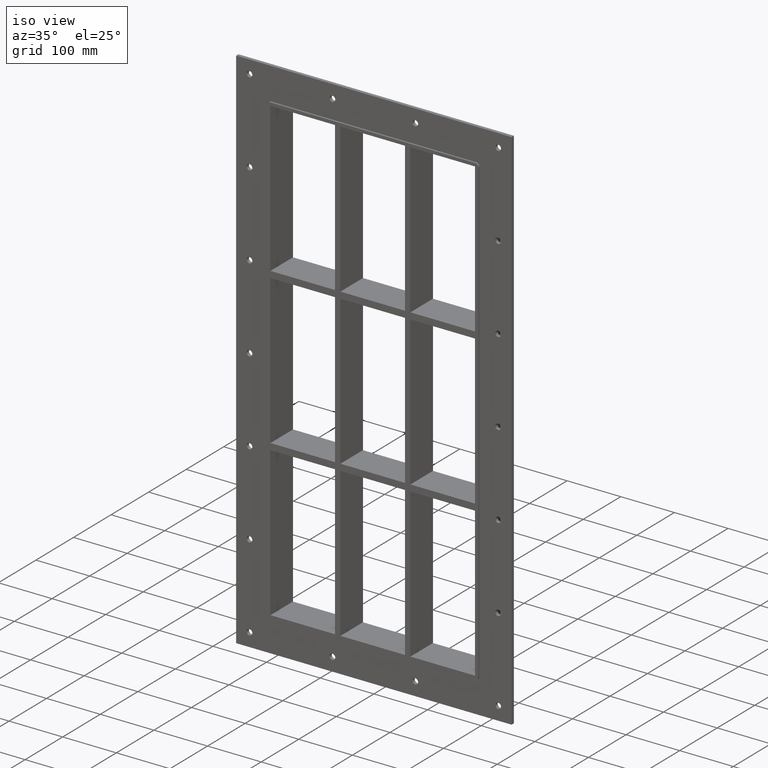
[diagram: clean part render]
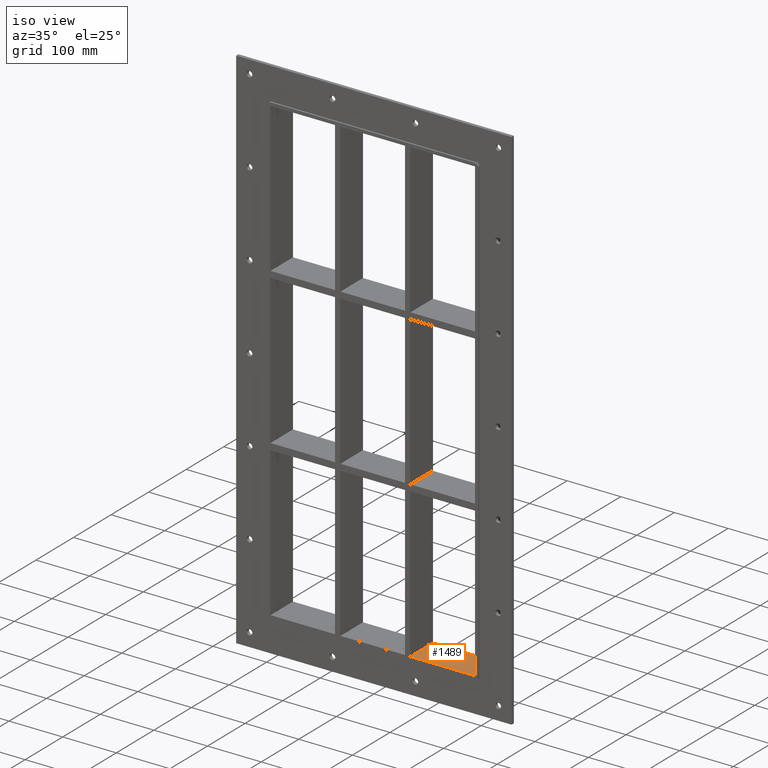
[diagram: same view with one face highlighted and labeled with its STEP entity id]
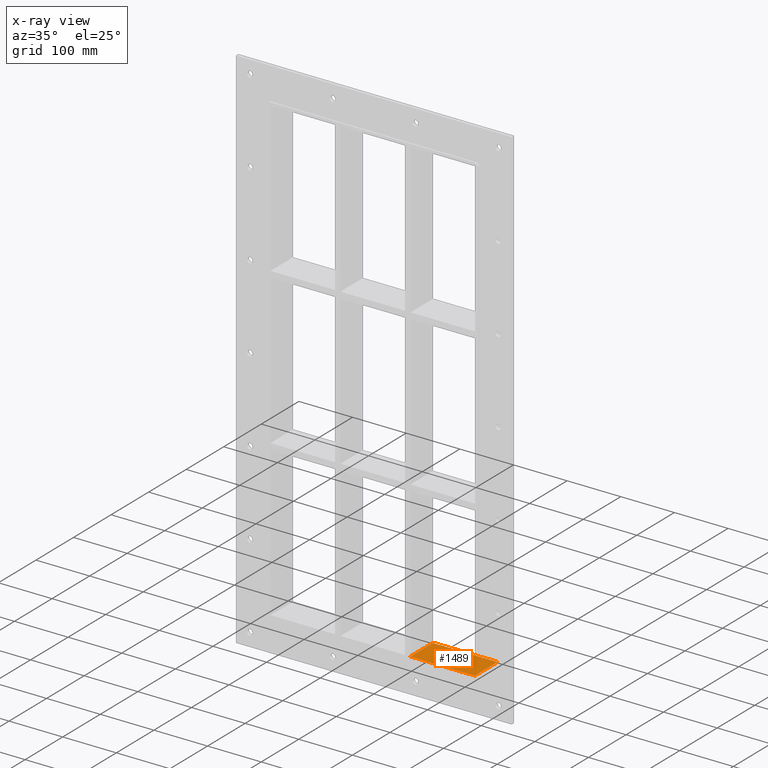
[diagram: x-ray of the same camera — body ghosted, the highlighted face saturated]
A machine part, iso view. The second image highlights one B-rep face of the part: STEP entity #1489.
The next image is the same camera in x-ray: the body ghosted, the highlighted face saturated — about 0% of this face is hidden behind the body in this view.
In plain terms, the highlighted planar face has unit normal (0, 0, -1).
Its self-contained STEP definition (entity closure, byte-faithful):
#1297=CARTESIAN_POINT('',(70.250000000003638,57.0,-428.99999999998641));
#1298=VERTEX_POINT('',#1297);
#1299=CARTESIAN_POINT('',(190.75000000000011,57.0,-429.00000000000006));
#1300=VERTEX_POINT('',#1299);
#1301=CARTESIAN_POINT('',(70.250000000003652,57.0,-429.00000000000006));
#1302=DIRECTION('',(1.0,0.0,0.0));
#1303=VECTOR('',#1302,120.49999999999646);
#1304=LINE('',#1301,#1303);
#1305=EDGE_CURVE('',#1298,#1300,#1304,.T.);
#1424=CARTESIAN_POINT('',(70.250000000003638,-3.0,-428.99999999998647));
#1425=VERTEX_POINT('',#1424);
#1432=CARTESIAN_POINT('',(70.250000000003638,57.000000000000007,-429.00000000000006));
#1433=DIRECTION('',(0.0,-1.0,0.0));
#1434=VECTOR('',#1433,60.000000000000007);
#1435=LINE('',#1432,#1434);
#1436=EDGE_CURVE('',#1298,#1425,#1435,.T.);
#1466=CARTESIAN_POINT('',(190.75000000000011,0.0,-429.00000000000006));
#1467=DIRECTION('',(0.0,0.0,-1.0));
#1468=DIRECTION('',(-1.0,0.0,0.0));
#1469=AXIS2_PLACEMENT_3D('',#1466,#1467,#1468);
#1470=PLANE('',#1469);
#1471=ORIENTED_EDGE('',*,*,#1436,.T.);
#1472=CARTESIAN_POINT('',(190.75000000000011,-3.0,-429.00000000000006));
#1473=VERTEX_POINT('',#1472);
#1474=CARTESIAN_POINT('',(190.75000000000011,-3.0,-429.00000000000006));
#1475=DIRECTION('',(-1.0,0.0,0.0));
#1476=VECTOR('',#1475,120.49999999999646);
#1477=LINE('',#1474,#1476);
#1478=EDGE_CURVE('',#1473,#1425,#1477,.T.);
#1479=ORIENTED_EDGE('',*,*,#1478,.F.);
#1480=CARTESIAN_POINT('',(190.75000000000011,56.999999999999993,-429.00000000000006));
#1481=DIRECTION('',(0.0,-1.0,0.0));
#1482=VECTOR('',#1481,59.999999999999993);
#1483=LINE('',#1480,#1482);
#1484=EDGE_CURVE('',#1300,#1473,#1483,.T.);
#1485=ORIENTED_EDGE('',*,*,#1484,.F.);
#1486=ORIENTED_EDGE('',*,*,#1305,.F.);
#1487=EDGE_LOOP('',(#1471,#1479,#1485,#1486));
#1488=FACE_OUTER_BOUND('',#1487,.T.);
#1489=ADVANCED_FACE('',(#1488),#1470,.F.);